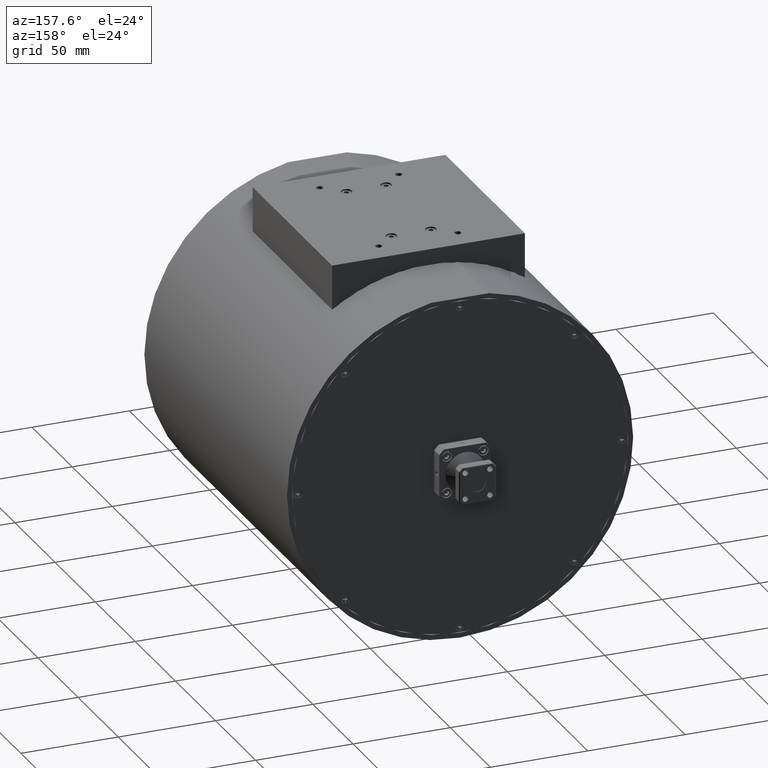
[diagram: clean part render]
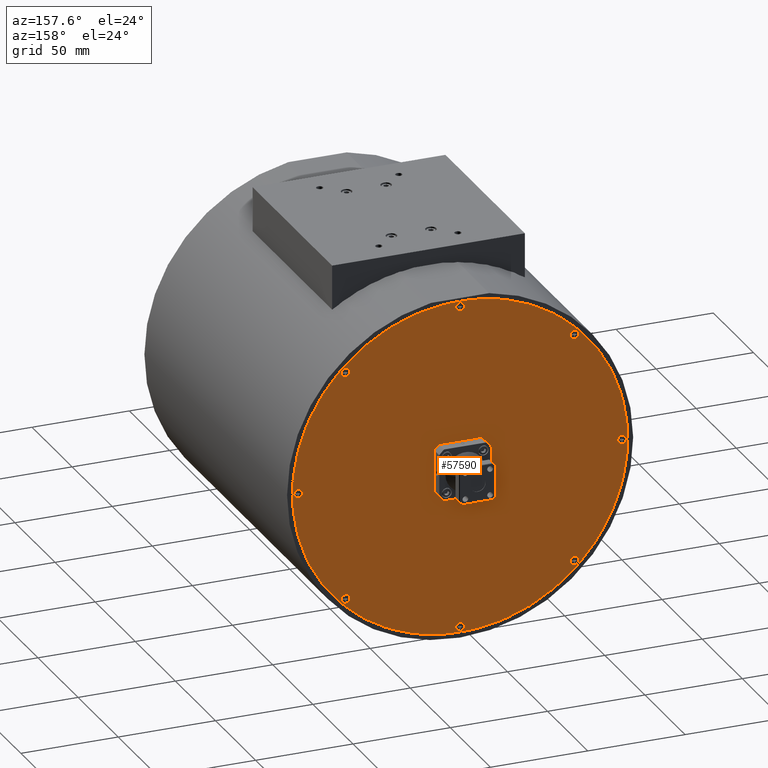
[diagram: same view with one face highlighted and labeled with its STEP entity id]
A machine part, auxiliary view. The second image highlights one B-rep face of the part: STEP entity #57590.
In plain terms, the highlighted planar face has unit normal (0, -1, 0).
Its self-contained STEP definition (entity closure, byte-faithful):
#235 = EDGE_CURVE ( 'NONE', #38027, #38791, #58016, .T. ) ;
#249 = VECTOR ( 'NONE', #34925, 39.37007874015748100 ) ;
#413 = ORIENTED_EDGE ( 'NONE', *, *, #9853, .T. ) ;
#764 = AXIS2_PLACEMENT_3D ( 'NONE', #39560, #9836, #65722 ) ;
#1016 = FACE_BOUND ( 'NONE', #50190, .T. ) ;
#1298 = ORIENTED_EDGE ( 'NONE', *, *, #10450, .F. ) ;
#1344 = DIRECTION ( 'NONE',  ( 0.7071067811865475700, 0.0000000000000000000, -0.7071067811865475700 ) ) ;
#1357 = CARTESIAN_POINT ( 'NONE',  ( 0.7450130354139049600, 4.544377155374181000, -1.517054366152438700 ) ) ;
#1561 = DIRECTION ( 'NONE',  ( -1.432160885642243400E-017, 1.000000000000000000, -5.753011097043310600E-017 ) ) ;
#2087 = EDGE_LOOP ( 'NONE', ( #63226, #32779 ) ) ;
#2230 = CARTESIAN_POINT ( 'NONE',  ( -3.886536381357982100, 4.544377155374181000, -1.517054366152439200 ) ) ;
#2620 = FACE_BOUND ( 'NONE', #2087, .T. ) ;
#2863 = CIRCLE ( 'NONE', #27186, 0.08749999999999981400 ) ;
#2995 = VERTEX_POINT ( 'NONE', #11120 ) ;
#3438 = ORIENTED_EDGE ( 'NONE', *, *, #52195, .F. ) ;
#3469 = CIRCLE ( 'NONE', #764, 0.6750000000000000400 ) ;
#3891 = CARTESIAN_POINT ( 'NONE',  ( 0.8298658491562903600, 4.544377155374181000, -1.601907179894824100 ) ) ;
#3933 = CARTESIAN_POINT ( 'NONE',  ( -3.824664538004159300, 4.544377155374181000, -1.578926209506261900 ) ) ;
#4005 = CARTESIAN_POINT ( 'NONE',  ( -3.948408224711804900, 4.544377155374181000, -1.455182522798616400 ) ) ;
#4195 = CARTESIAN_POINT ( 'NONE',  ( -1.045761672972042900, 4.544377155374181000, 1.222984410945444200 ) ) ;
#4305 = EDGE_CURVE ( 'NONE', #45408, #46602, #24863, .T. ) ;
#4608 = EDGE_LOOP ( 'NONE', ( #23789, #1298 ) ) ;
#4636 = DIRECTION ( 'NONE',  ( 4.996003610813199700E-015, 6.723272640947588100E-018, -1.000000000000000000 ) ) ;
#4978 = CARTESIAN_POINT ( 'NONE',  ( 1.766110170381784100, 4.544377155374181000, 0.7368484988796818500 ) ) ;
#5254 = CARTESIAN_POINT ( 'NONE',  ( -3.886536381357982100, 4.544377155374181000, -1.517054366152439200 ) ) ;
#5304 = DIRECTION ( 'NONE',  ( -1.432160885642243400E-017, 1.000000000000000000, -5.753011097043310600E-017 ) ) ;
#5707 = CARTESIAN_POINT ( 'NONE',  ( -1.995025741683972300, 4.544377155374181000, 1.323720342233510900 ) ) ;
#5938 = EDGE_CURVE ( 'NONE', #41137, #2995, #62995, .T. ) ;
#6077 = AXIS2_PLACEMENT_3D ( 'NONE', #63230, #52661, #32565 ) ;
#7046 = VERTEX_POINT ( 'NONE', #61888 ) ;
#7139 = EDGE_CURVE ( 'NONE', #35413, #65373, #56415, .T. ) ;
#7184 = VECTOR ( 'NONE', #34124, 39.37007874015748100 ) ;
#7186 = DIRECTION ( 'NONE',  ( 0.7071067811865476800, 0.0000000000000000000, -0.7071067811865473500 ) ) ;
#7584 = ORIENTED_EDGE ( 'NONE', *, *, #51313, .F. ) ;
#8212 = ORIENTED_EDGE ( 'NONE', *, *, #41419, .T. ) ;
#8661 = EDGE_CURVE ( 'NONE', #7046, #9898, #33979, .T. ) ;
#8879 = CARTESIAN_POINT ( 'NONE',  ( -1.045761672972038300, 4.544377155374181000, 0.2737203422335155500 ) ) ;
#8894 = ORIENTED_EDGE ( 'NONE', *, *, #235, .F. ) ;
#9022 = EDGE_CURVE ( 'NONE', #11102, #36004, #3469, .T. ) ;
#9219 = CARTESIAN_POINT ( 'NONE',  ( 0.7450130354139038500, 4.544377155374181000, 3.114495050619448000 ) ) ;
#9412 = DIRECTION ( 'NONE',  ( 0.7071067811865476800, 0.0000000000000000000, -0.7071067811865473500 ) ) ;
#9641 = DIRECTION ( 'NONE',  ( 4.487463370615262100E-017, 1.000000000000000000, 6.723272640947488000E-018 ) ) ;
#9733 = CARTESIAN_POINT ( 'NONE',  ( -1.570761672972040600, 4.544377155374181000, 0.7987203422335130700 ) ) ;
#9836 = DIRECTION ( 'NONE',  ( 4.487463370615262100E-017, 1.000000000000000000, 6.723272640947488000E-018 ) ) ;
#9853 = EDGE_CURVE ( 'NONE', #54789, #64095, #41120, .T. ) ;
#9897 = CIRCLE ( 'NONE', #14362, 0.08749999999999981400 ) ;
#9898 = VERTEX_POINT ( 'NONE', #65354 ) ;
#10450 = EDGE_CURVE ( 'NONE', #55826, #33376, #54575, .T. ) ;
#10744 = FACE_BOUND ( 'NONE', #39069, .T. ) ;
#11102 = VERTEX_POINT ( 'NONE', #58633 ) ;
#11120 = CARTESIAN_POINT ( 'NONE',  ( -3.824664538004160600, 4.544377155374181000, 3.052623207265624700 ) ) ;
#11582 = CIRCLE ( 'NONE', #22378, 0.08749999999999991100 ) ;
#11741 = CARTESIAN_POINT ( 'NONE',  ( -3.886536381357983400, 4.544377155374181000, 3.114495050619447500 ) ) ;
#12140 = CARTESIAN_POINT ( 'NONE',  ( -2.048058750272960400, 4.544377155374181000, 1.276017419534432500 ) ) ;
#12426 = CARTESIAN_POINT ( 'NONE',  ( -1.570761672972039300, 4.544377155374181000, 0.7987203422335045200 ) ) ;
#13076 = LINE ( 'NONE', #32421, #26647 ) ;
#13395 = ORIENTED_EDGE ( 'NONE', *, *, #62108, .F. ) ;
#13410 = AXIS2_PLACEMENT_3D ( 'NONE', #11741, #42118, #42779 ) ;
#13716 = DIRECTION ( 'NONE',  ( 0.7071067811865483500, 0.0000000000000000000, -0.7071067811865468000 ) ) ;
#14362 = AXIS2_PLACEMENT_3D ( 'NONE', #5254, #30976, #25886 ) ;
#14553 = CARTESIAN_POINT ( 'NONE',  ( -4.907633516325862600, 4.544377155374181000, 0.8605921855873270900 ) ) ;
#14586 = ORIENTED_EDGE ( 'NONE', *, *, #55338, .F. ) ;
#14875 = DIRECTION ( 'NONE',  ( 4.487463370615262100E-017, 1.000000000000000000, 6.723272640947488000E-018 ) ) ;
#16096 = DIRECTION ( 'NONE',  ( -1.432160885642243400E-017, 1.000000000000000000, -5.753011097043310600E-017 ) ) ;
#16322 = AXIS2_PLACEMENT_3D ( 'NONE', #31489, #62569, #56965 ) ;
#16515 = DIRECTION ( 'NONE',  ( 0.7071067811865491300, 0.0000000000000000000, -0.7071067811865460200 ) ) ;
#16523 = DIRECTION ( 'NONE',  ( 1.432160885642243400E-017, -1.000000000000000000, 5.753011097043310600E-017 ) ) ;
#16660 = ORIENTED_EDGE ( 'NONE', *, *, #29315, .F. ) ;
#16742 = CARTESIAN_POINT ( 'NONE',  ( -1.570761672972039300, 4.544377155374181000, 0.7987203422335045200 ) ) ;
#17364 = CARTESIAN_POINT ( 'NONE',  ( -3.971389195100369900, 4.544377155374181000, 3.199347864361833200 ) ) ;
#17689 = CIRCLE ( 'NONE', #20643, 0.08750000000000000800 ) ;
#17893 = AXIS2_PLACEMENT_3D ( 'NONE', #52359, #21778, #7186 ) ;
#18460 = EDGE_CURVE ( 'NONE', #48357, #22729, #52514, .T. ) ;
#19029 = CARTESIAN_POINT ( 'NONE',  ( -1.146497604260109200, 4.544377155374181000, 0.2737203422335149300 ) ) ;
#19181 = CIRCLE ( 'NONE', #21905, 0.6750000000000000400 ) ;
#20219 = EDGE_CURVE ( 'NONE', #9898, #7046, #30084, .T. ) ;
#20230 = AXIS2_PLACEMENT_3D ( 'NONE', #55639, #9641, #9412 ) ;
#20247 = ORIENTED_EDGE ( 'NONE', *, *, #51595, .T. ) ;
#20643 = AXIS2_PLACEMENT_3D ( 'NONE', #26776, #16096, #16515 ) ;
#21159 = VERTEX_POINT ( 'NONE', #57436 ) ;
#21348 = EDGE_LOOP ( 'NONE', ( #13395, #14586 ) ) ;
#21778 = DIRECTION ( 'NONE',  ( 4.487463370615262100E-017, 1.000000000000000000, 6.723272640947488000E-018 ) ) ;
#21905 = AXIS2_PLACEMENT_3D ( 'NONE', #9733, #14875, #30458 ) ;
#22159 = EDGE_CURVE ( 'NONE', #35081, #30991, #52225, .T. ) ;
#22378 = AXIS2_PLACEMENT_3D ( 'NONE', #65002, #34353, #30518 ) ;
#22729 = VERTEX_POINT ( 'NONE', #58177 ) ;
#23789 = ORIENTED_EDGE ( 'NONE', *, *, #48100, .F. ) ;
#24243 = DIRECTION ( 'NONE',  ( 0.7071067811865482400, 0.0000000000000000000, -0.7071067811865466800 ) ) ;
#24325 = FACE_BOUND ( 'NONE', #21348, .T. ) ;
#24863 = CIRCLE ( 'NONE', #66006, 0.08749999999999991100 ) ;
#24930 = DIRECTION ( 'NONE',  ( 0.7071067811865483500, 0.0000000000000000000, -0.7071067811865468000 ) ) ;
#25522 = EDGE_CURVE ( 'NONE', #22729, #48357, #41253, .T. ) ;
#25886 = DIRECTION ( 'NONE',  ( 0.7071067811865475700, 0.0000000000000000000, -0.7071067811865475700 ) ) ;
#26647 = VECTOR ( 'NONE', #63766, 39.37007874015748100 ) ;
#26776 = CARTESIAN_POINT ( 'NONE',  ( -1.570761672972039300, 4.544377155374181000, -2.476279657766495800 ) ) ;
#27186 = AXIS2_PLACEMENT_3D ( 'NONE', #2230, #1561, #1344 ) ;
#27463 = CIRCLE ( 'NONE', #32503, 0.08749999999999981400 ) ;
#27524 = FACE_BOUND ( 'NONE', #4608, .T. ) ;
#27626 = CARTESIAN_POINT ( 'NONE',  ( 0.7450130354139049600, 4.544377155374181000, -1.517054366152438700 ) ) ;
#27707 = VERTEX_POINT ( 'NONE', #4195 ) ;
#27854 = PLANE ( 'NONE',  #31623 ) ;
#27904 = CIRCLE ( 'NONE', #62338, 0.08749999999999991100 ) ;
#28010 = DIRECTION ( 'NONE',  ( 0.7071067811865468000, 0.0000000000000000000, -0.7071067811865483500 ) ) ;
#28101 = DIRECTION ( 'NONE',  ( 0.7071067811865491300, 0.0000000000000000000, -0.7071067811865460200 ) ) ;
#28574 = ORIENTED_EDGE ( 'NONE', *, *, #37761, .F. ) ;
#29240 = VERTEX_POINT ( 'NONE', #3933 ) ;
#29315 = EDGE_CURVE ( 'NONE', #65373, #35413, #17689, .T. ) ;
#29839 = ORIENTED_EDGE ( 'NONE', *, *, #38644, .T. ) ;
#30084 = CIRCLE ( 'NONE', #6077, 0.08750000000000000800 ) ;
#30175 = EDGE_LOOP ( 'NONE', ( #42434, #57375 ) ) ;
#30458 = DIRECTION ( 'NONE',  ( 0.7071067811865476800, 0.0000000000000000000, -0.7071067811865473500 ) ) ;
#30518 = DIRECTION ( 'NONE',  ( 0.7071067811865468000, 0.0000000000000000000, -0.7071067811865483500 ) ) ;
#30598 = AXIS2_PLACEMENT_3D ( 'NONE', #58249, #53309, #28101 ) ;
#30976 = DIRECTION ( 'NONE',  ( -1.432160885642243400E-017, 1.000000000000000000, -5.753011097043310600E-017 ) ) ;
#30991 = VERTEX_POINT ( 'NONE', #17364 ) ;
#31142 = ORIENTED_EDGE ( 'NONE', *, *, #58359, .F. ) ;
#31418 = CARTESIAN_POINT ( 'NONE',  ( -1.146497604260114500, 4.544377155374181000, 1.323720342233514900 ) ) ;
#31478 = DIRECTION ( 'NONE',  ( 0.7071067811865482400, 0.0000000000000000000, -0.7071067811865466800 ) ) ;
#31489 = CARTESIAN_POINT ( 'NONE',  ( -1.570761672972040600, 4.544377155374181000, 0.7987203422335130700 ) ) ;
#31623 = AXIS2_PLACEMENT_3D ( 'NONE', #12426, #53266, #48588 ) ;
#32217 = EDGE_CURVE ( 'NONE', #46602, #45408, #27904, .T. ) ;
#32235 = DIRECTION ( 'NONE',  ( 0.7071067811865491300, 0.0000000000000000000, -0.7071067811865460200 ) ) ;
#32421 = CARTESIAN_POINT ( 'NONE',  ( -2.095761672972038100, 4.544377155374181000, 0.2737203422335093800 ) ) ;
#32503 = AXIS2_PLACEMENT_3D ( 'NONE', #44742, #60139, #34214 ) ;
#32560 = AXIS2_PLACEMENT_3D ( 'NONE', #63607, #48304, #28010 ) ;
#32565 = DIRECTION ( 'NONE',  ( 0.7071067811865491300, 0.0000000000000000000, -0.7071067811865460200 ) ) ;
#32779 = ORIENTED_EDGE ( 'NONE', *, *, #32217, .F. ) ;
#33088 = FACE_BOUND ( 'NONE', #39772, .T. ) ;
#33376 = VERTEX_POINT ( 'NONE', #4978 ) ;
#33832 = CARTESIAN_POINT ( 'NONE',  ( 1.704238327027961100, 4.544377155374181000, 0.7987203422335047400 ) ) ;
#33979 = CIRCLE ( 'NONE', #49192, 0.08750000000000000800 ) ;
#34124 = DIRECTION ( 'NONE',  ( -4.940492459581946600E-015, -6.723272640947612000E-018, 1.000000000000000000 ) ) ;
#34214 = DIRECTION ( 'NONE',  ( 0.7071067811865475700, 0.0000000000000000000, -0.7071067811865475700 ) ) ;
#34223 = ORIENTED_EDGE ( 'NONE', *, *, #20219, .F. ) ;
#34353 = DIRECTION ( 'NONE',  ( -1.432160885642243400E-017, 1.000000000000000000, -5.753011097043310600E-017 ) ) ;
#34704 = EDGE_LOOP ( 'NONE', ( #66270, #62990 ) ) ;
#34925 = DIRECTION ( 'NONE',  ( -1.000000000000000000, 4.487463370615272600E-017, -4.996003610813198900E-015 ) ) ;
#35081 = VERTEX_POINT ( 'NONE', #3891 ) ;
#35413 = VERTEX_POINT ( 'NONE', #63212 ) ;
#35613 = DIRECTION ( 'NONE',  ( -1.432160885642243400E-017, 1.000000000000000000, -5.753011097043310600E-017 ) ) ;
#36004 = VERTEX_POINT ( 'NONE', #12140 ) ;
#36799 = DIRECTION ( 'NONE',  ( -1.432160885642243400E-017, 1.000000000000000000, -5.753011097043310600E-017 ) ) ;
#37102 = FACE_OUTER_BOUND ( 'NONE', #34704, .T. ) ;
#37221 = CIRCLE ( 'NONE', #20230, 0.6750000000000000400 ) ;
#37450 = VERTEX_POINT ( 'NONE', #52020 ) ;
#37629 = ORIENTED_EDGE ( 'NONE', *, *, #9022, .F. ) ;
#37761 = EDGE_CURVE ( 'NONE', #41467, #45109, #11582, .T. ) ;
#38027 = VERTEX_POINT ( 'NONE', #41689 ) ;
#38644 = EDGE_CURVE ( 'NONE', #37450, #38791, #13076, .T. ) ;
#38738 = EDGE_LOOP ( 'NONE', ( #7584, #28574 ) ) ;
#38791 = VERTEX_POINT ( 'NONE', #19029 ) ;
#38889 = CIRCLE ( 'NONE', #42641, 0.08750000000000011900 ) ;
#39069 = EDGE_LOOP ( 'NONE', ( #8212, #3438, #29839, #8894, #20247, #64036, #413, #31142, #37629 ) ) ;
#39560 = CARTESIAN_POINT ( 'NONE',  ( -1.570761672972040600, 4.544377155374181000, 0.7987203422335130700 ) ) ;
#39772 = EDGE_LOOP ( 'NONE', ( #65617, #41425 ) ) ;
#41120 = LINE ( 'NONE', #49439, #249 ) ;
#41137 = VERTEX_POINT ( 'NONE', #57415 ) ;
#41221 = EDGE_LOOP ( 'NONE', ( #16660, #58777 ) ) ;
#41253 = CIRCLE ( 'NONE', #57761, 0.08750000000000021600 ) ;
#41419 = EDGE_CURVE ( 'NONE', #11102, #21159, #64383, .T. ) ;
#41425 = ORIENTED_EDGE ( 'NONE', *, *, #5938, .F. ) ;
#41467 = VERTEX_POINT ( 'NONE', #14553 ) ;
#41689 = CARTESIAN_POINT ( 'NONE',  ( -1.045761672972038500, 4.544377155374181000, 0.3744562735215866100 ) ) ;
#41879 = DIRECTION ( 'NONE',  ( 0.7071067811865474600, 0.0000000000000000000, -0.7071067811865474600 ) ) ;
#42118 = DIRECTION ( 'NONE',  ( -1.432160885642243400E-017, 1.000000000000000000, -5.753011097043310600E-017 ) ) ;
#42416 = LINE ( 'NONE', #8879, #7184 ) ;
#42434 = ORIENTED_EDGE ( 'NONE', *, *, #25522, .F. ) ;
#42520 = DIRECTION ( 'NONE',  ( -1.432160885642243400E-017, 1.000000000000000000, -5.753011097043310600E-017 ) ) ;
#42641 = AXIS2_PLACEMENT_3D ( 'NONE', #33832, #35613, #24243 ) ;
#42779 = DIRECTION ( 'NONE',  ( 0.7071067811865475700, 0.0000000000000000000, -0.7071067811865475700 ) ) ;
#42971 = CARTESIAN_POINT ( 'NONE',  ( -1.570761672972039300, 4.544377155374181000, 4.073720342233505300 ) ) ;
#44536 = DIRECTION ( 'NONE',  ( -1.432160885642243400E-017, 1.000000000000000000, -5.753011097043310600E-017 ) ) ;
#44742 = CARTESIAN_POINT ( 'NONE',  ( -3.886536381357983400, 4.544377155374181000, 3.114495050619447500 ) ) ;
#44852 = CARTESIAN_POINT ( 'NONE',  ( -1.570761672972039300, 4.544377155374181000, 0.7987203422335045200 ) ) ;
#45036 = AXIS2_PLACEMENT_3D ( 'NONE', #1357, #36799, #41879 ) ;
#45109 = VERTEX_POINT ( 'NONE', #63939 ) ;
#45408 = VERTEX_POINT ( 'NONE', #62309 ) ;
#46602 = VERTEX_POINT ( 'NONE', #60653 ) ;
#46655 = VECTOR ( 'NONE', #4636, 39.37007874015748100 ) ;
#46694 = CARTESIAN_POINT ( 'NONE',  ( 1.704238327027961100, 4.544377155374181000, 0.7987203422335047400 ) ) ;
#46985 = CIRCLE ( 'NONE', #47720, 3.395000000000000500 ) ;
#47720 = AXIS2_PLACEMENT_3D ( 'NONE', #44852, #59802, #55748 ) ;
#48100 = EDGE_CURVE ( 'NONE', #33376, #55826, #38889, .T. ) ;
#48304 = DIRECTION ( 'NONE',  ( -1.432160885642243400E-017, 1.000000000000000000, -5.753011097043310600E-017 ) ) ;
#48357 = VERTEX_POINT ( 'NONE', #51469 ) ;
#48588 = DIRECTION ( 'NONE',  ( -0.7071067811865476800, 2.775557561562890700E-017, 0.7071067811865473500 ) ) ;
#48717 = VERTEX_POINT ( 'NONE', #4005 ) ;
#49192 = AXIS2_PLACEMENT_3D ( 'NONE', #42971, #42520, #32235 ) ;
#49439 = CARTESIAN_POINT ( 'NONE',  ( -1.045761672972042900, 4.544377155374181000, 1.323720342233515800 ) ) ;
#49891 = FACE_BOUND ( 'NONE', #30175, .T. ) ;
#50190 = EDGE_LOOP ( 'NONE', ( #61170, #34223 ) ) ;
#50358 = DIRECTION ( 'NONE',  ( -1.432160885642243400E-017, 1.000000000000000000, -5.753011097043310600E-017 ) ) ;
#51313 = EDGE_CURVE ( 'NONE', #45109, #41467, #55261, .T. ) ;
#51342 = AXIS2_PLACEMENT_3D ( 'NONE', #46694, #5304, #31478 ) ;
#51469 = CARTESIAN_POINT ( 'NONE',  ( 0.6831411920600818400, 4.544377155374181000, -1.455182522798615500 ) ) ;
#51595 = EDGE_CURVE ( 'NONE', #38027, #27707, #42416, .T. ) ;
#52020 = CARTESIAN_POINT ( 'NONE',  ( -1.995025741683967000, 4.544377155374181000, 0.2737203422335098300 ) ) ;
#52195 = EDGE_CURVE ( 'NONE', #37450, #21159, #19181, .T. ) ;
#52225 = CIRCLE ( 'NONE', #55236, 3.395000000000000500 ) ;
#52254 = FACE_BOUND ( 'NONE', #41221, .T. ) ;
#52359 = CARTESIAN_POINT ( 'NONE',  ( -1.570761672972040600, 4.544377155374181000, 0.7987203422335130700 ) ) ;
#52414 = DIRECTION ( 'NONE',  ( -1.432160885642243400E-017, 1.000000000000000000, -5.753011097043310600E-017 ) ) ;
#52496 = CARTESIAN_POINT ( 'NONE',  ( 1.642366483674138100, 4.544377155374181000, 0.8605921855873276400 ) ) ;
#52514 = CIRCLE ( 'NONE', #45036, 0.08750000000000021600 ) ;
#52658 = DIRECTION ( 'NONE',  ( -0.7071067811865477900, 0.0000000000000000000, 0.7071067811865473500 ) ) ;
#52661 = DIRECTION ( 'NONE',  ( -1.432160885642243400E-017, 1.000000000000000000, -5.753011097043310600E-017 ) ) ;
#53266 = DIRECTION ( 'NONE',  ( 1.629970417988057600E-017, -1.000000000000000000, 5.555201564697497000E-017 ) ) ;
#53309 = DIRECTION ( 'NONE',  ( -1.432160885642243400E-017, 1.000000000000000000, -5.753011097043310600E-017 ) ) ;
#54575 = CIRCLE ( 'NONE', #51342, 0.08750000000000011900 ) ;
#54789 = VERTEX_POINT ( 'NONE', #31418 ) ;
#55046 = EDGE_CURVE ( 'NONE', #30991, #35081, #46985, .T. ) ;
#55236 = AXIS2_PLACEMENT_3D ( 'NONE', #16742, #16523, #52658 ) ;
#55261 = CIRCLE ( 'NONE', #32560, 0.08749999999999991100 ) ;
#55338 = EDGE_CURVE ( 'NONE', #48717, #29240, #2863, .T. ) ;
#55473 = FACE_BOUND ( 'NONE', #38738, .T. ) ;
#55639 = CARTESIAN_POINT ( 'NONE',  ( -1.570761672972040600, 4.544377155374181000, 0.7987203422335130700 ) ) ;
#55748 = DIRECTION ( 'NONE',  ( -0.7071067811865477900, 0.0000000000000000000, 0.7071067811865473500 ) ) ;
#55826 = VERTEX_POINT ( 'NONE', #52496 ) ;
#56415 = CIRCLE ( 'NONE', #30598, 0.08750000000000000800 ) ;
#56710 = EDGE_CURVE ( 'NONE', #54789, #27707, #37221, .T. ) ;
#56965 = DIRECTION ( 'NONE',  ( 0.7071067811865476800, 0.0000000000000000000, -0.7071067811865473500 ) ) ;
#57375 = ORIENTED_EDGE ( 'NONE', *, *, #18460, .F. ) ;
#57415 = CARTESIAN_POINT ( 'NONE',  ( -3.948408224711806200, 4.544377155374181000, 3.176366893973270300 ) ) ;
#57436 = CARTESIAN_POINT ( 'NONE',  ( -2.095761672972038500, 4.544377155374181000, 0.3744562735215814500 ) ) ;
#57590 = ADVANCED_FACE ( 'NONE', ( #10744, #55473, #24325, #52254, #49891, #27524, #2620, #1016, #33088, #37102 ), #27854, .F. ) ;
#57761 = AXIS2_PLACEMENT_3D ( 'NONE', #27626, #52414, #63405 ) ;
#58016 = CIRCLE ( 'NONE', #17893, 0.6750000000000000400 ) ;
#58146 = EDGE_CURVE ( 'NONE', #2995, #41137, #27463, .T. ) ;
#58177 = CARTESIAN_POINT ( 'NONE',  ( 0.8068848787677279600, 4.544377155374181000, -1.578926209506261700 ) ) ;
#58249 = CARTESIAN_POINT ( 'NONE',  ( -1.570761672972039300, 4.544377155374181000, -2.476279657766495800 ) ) ;
#58359 = EDGE_CURVE ( 'NONE', #36004, #64095, #58610, .T. ) ;
#58610 = CIRCLE ( 'NONE', #16322, 0.6750000000000000400 ) ;
#58633 = CARTESIAN_POINT ( 'NONE',  ( -2.095761672972043000, 4.544377155374181000, 1.222984410945438400 ) ) ;
#58777 = ORIENTED_EDGE ( 'NONE', *, *, #7139, .F. ) ;
#59802 = DIRECTION ( 'NONE',  ( 1.432160885642243400E-017, -1.000000000000000000, 5.753011097043310600E-017 ) ) ;
#60139 = DIRECTION ( 'NONE',  ( -1.432160885642243400E-017, 1.000000000000000000, -5.753011097043310600E-017 ) ) ;
#60653 = CARTESIAN_POINT ( 'NONE',  ( 0.6831411920600808400, 4.544377155374181000, 3.176366893973270800 ) ) ;
#61170 = ORIENTED_EDGE ( 'NONE', *, *, #8661, .F. ) ;
#61888 = CARTESIAN_POINT ( 'NONE',  ( -1.508889829618216300, 4.544377155374181000, 4.011848498879682100 ) ) ;
#62108 = EDGE_CURVE ( 'NONE', #29240, #48717, #9897, .T. ) ;
#62309 = CARTESIAN_POINT ( 'NONE',  ( 0.8068848787677267400, 4.544377155374181000, 3.052623207265625200 ) ) ;
#62338 = AXIS2_PLACEMENT_3D ( 'NONE', #9219, #44536, #13716 ) ;
#62569 = DIRECTION ( 'NONE',  ( 4.487463370615262100E-017, 1.000000000000000000, 6.723272640947488000E-018 ) ) ;
#62990 = ORIENTED_EDGE ( 'NONE', *, *, #55046, .F. ) ;
#62995 = CIRCLE ( 'NONE', #13410, 0.08749999999999981400 ) ;
#63212 = CARTESIAN_POINT ( 'NONE',  ( -1.632633516325862300, 4.544377155374181000, -2.414407814412673000 ) ) ;
#63226 = ORIENTED_EDGE ( 'NONE', *, *, #4305, .F. ) ;
#63230 = CARTESIAN_POINT ( 'NONE',  ( -1.570761672972039300, 4.544377155374181000, 4.073720342233505300 ) ) ;
#63405 = DIRECTION ( 'NONE',  ( 0.7071067811865474600, 0.0000000000000000000, -0.7071067811865474600 ) ) ;
#63607 = CARTESIAN_POINT ( 'NONE',  ( -4.845761672972040300, 4.544377155374181000, 0.7987203422335041900 ) ) ;
#63766 = DIRECTION ( 'NONE',  ( 1.000000000000000000, -4.487463370615278100E-017, 4.718447854656915300E-015 ) ) ;
#63939 = CARTESIAN_POINT ( 'NONE',  ( -4.783889829618217100, 4.544377155374181000, 0.7368484988796812900 ) ) ;
#64036 = ORIENTED_EDGE ( 'NONE', *, *, #56710, .F. ) ;
#64095 = VERTEX_POINT ( 'NONE', #5707 ) ;
#64383 = LINE ( 'NONE', #65950, #46655 ) ;
#65002 = CARTESIAN_POINT ( 'NONE',  ( -4.845761672972040300, 4.544377155374181000, 0.7987203422335041900 ) ) ;
#65354 = CARTESIAN_POINT ( 'NONE',  ( -1.632633516325862300, 4.544377155374181000, 4.135592185587327700 ) ) ;
#65373 = VERTEX_POINT ( 'NONE', #66173 ) ;
#65617 = ORIENTED_EDGE ( 'NONE', *, *, #58146, .F. ) ;
#65722 = DIRECTION ( 'NONE',  ( 0.7071067811865476800, 0.0000000000000000000, -0.7071067811865473500 ) ) ;
#65950 = CARTESIAN_POINT ( 'NONE',  ( -2.095761672972043900, 4.544377155374181000, 1.323720342233510000 ) ) ;
#66006 = AXIS2_PLACEMENT_3D ( 'NONE', #66487, #50358, #24930 ) ;
#66173 = CARTESIAN_POINT ( 'NONE',  ( -1.508889829618216300, 4.544377155374181000, -2.538151501120318600 ) ) ;
#66270 = ORIENTED_EDGE ( 'NONE', *, *, #22159, .F. ) ;
#66487 = CARTESIAN_POINT ( 'NONE',  ( 0.7450130354139038500, 4.544377155374181000, 3.114495050619448000 ) ) ;